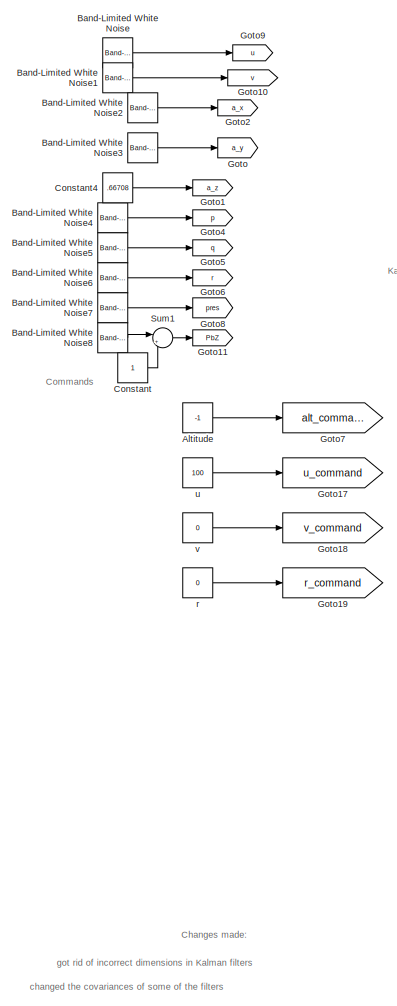
[diagram: root canvas - part 1/3, left side, full height]
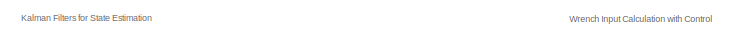
[diagram: root canvas - part 2/3, top center region]
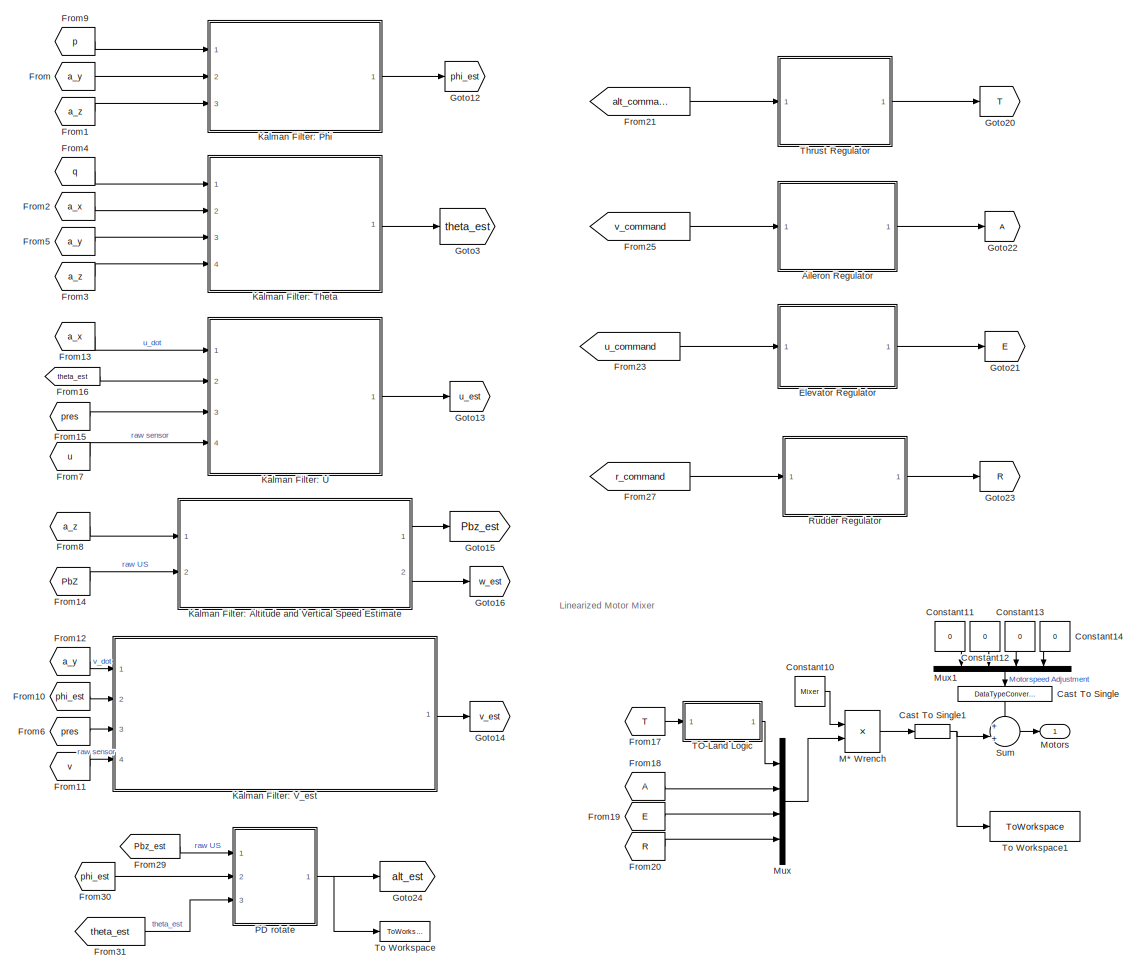
[diagram: root canvas - part 3/3, center side, full height]
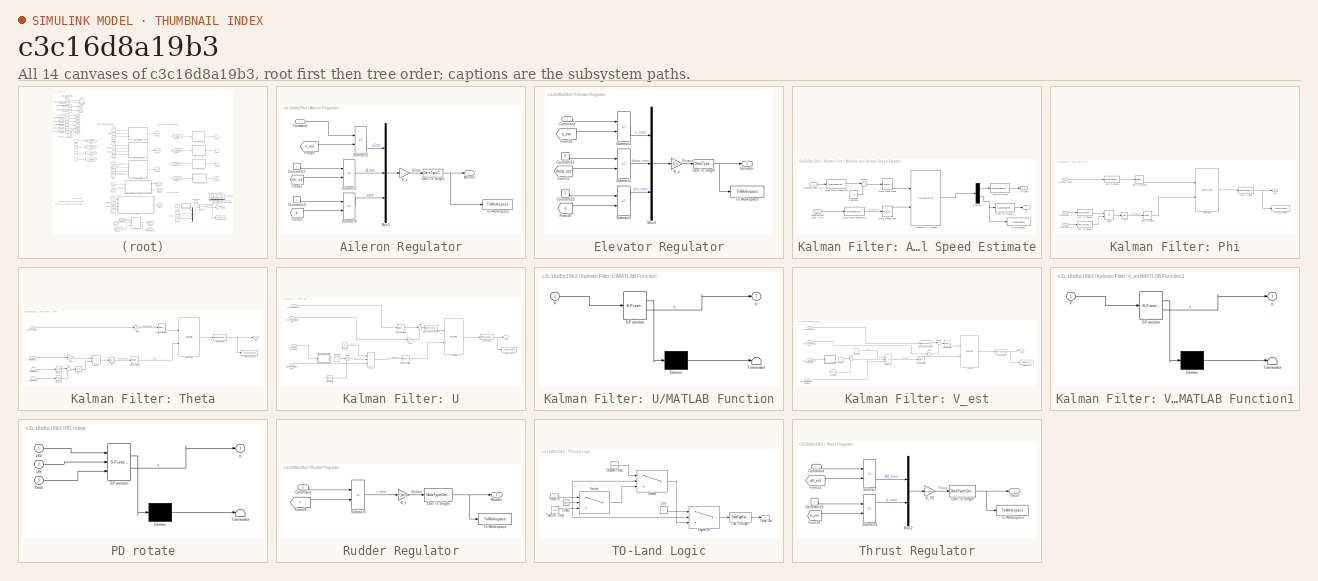
[diagram: thumbnail index - all 14 canvases of the model, root first then tree order]
MODEL slx_c3c16d8a19b3
KIND model
CONFIG AbsTol = auto
CONFIG EnableMultiTasking = off
CONFIG FixedStep = auto
CONFIG MaxStep = auto
CONFIG MinStep = auto
CONFIG RelTol = 1e-3
CONFIG SampleTimeConstraint = Unconstrained
CONFIG SolverName = VariableStepAuto
CONFIG StartTime = 0.0
CONFIG StopTime = 10.0
BLOCK [SubSystem] Aileron Regulator
  Ports = [1, 1]
  RequestExecContextInheritance = off
BLOCK [Outport] Aileron Regulator/Aileron
BLOCK [DataTypeConversion] Aileron Regulator/Cast To Single
  OutDataTypeStr = single
  RndMeth = Floor
  SaturateOnIntegerOverflow = off
BLOCK [Inport] Aileron Regulator/Command
BLOCK [Constant] Aileron Regulator/Constant10
  Value = 0
BLOCK [Constant] Aileron Regulator/Constant11
  Value = 0
BLOCK [From] Aileron Regulator/From22
  GotoTag = phi_est
  TagVisibility = global
BLOCK [From] Aileron Regulator/From26
  GotoTag = v_est
  TagVisibility = global
BLOCK [From] Aileron Regulator/From33
  GotoTag = p
  TagVisibility = global
BLOCK [Gain] Aileron Regulator/K_v
  Gain = K_v
  Multiplication = Matrix(K*u)
BLOCK [Mux] Aileron Regulator/Mux3
  DisplayOption = bar
  Inputs = 3
  Ports = [3, 1]
BLOCK [Sum] Aileron Regulator/Subtract2
  IconShape = rectangular
  Inputs = +-
  Ports = [2, 1]
BLOCK [Sum] Aileron Regulator/Subtract4
  IconShape = rectangular
  Inputs = +-
  Ports = [2, 1]
BLOCK [Sum] Aileron Regulator/Subtract5
  IconShape = rectangular
  Inputs = +-
  Ports = [2, 1]
BLOCK [ToWorkspace] Aileron Regulator/To Workspace
  FixptAsFi = on
  MaxDataPoints = inf
  Ports = [1]
  SampleTime = -1
  SaveFormat = Timeseries
  VariableName = aileron_out
BLOCK [Constant] Altitude
  Value = -1
BLOCK [Reference] Band-Limited White Noise  REF=simulink/Sources/Band-Limited
White Noise
  Ports = [0, 1]
  SourceBlock = simulink/Sources/Band-Limited\nWhite Noise
  SourceProductBaseCode = SL
  SourceType = Band-Limited White Noise.
BLOCK [Reference] Band-Limited White Noise1  REF=simulink/Sources/Band-Limited
White Noise
  Ports = [0, 1]
  SourceBlock = simulink/Sources/Band-Limited\nWhite Noise
  SourceProductBaseCode = SL
  SourceType = Band-Limited White Noise.
BLOCK [Reference] Band-Limited White Noise2  REF=simulink/Sources/Band-Limited
White Noise
  Ports = [0, 1]
  SourceBlock = simulink/Sources/Band-Limited\nWhite Noise
  SourceProductBaseCode = SL
  SourceType = Band-Limited White Noise.
BLOCK [Reference] Band-Limited White Noise3  REF=simulink/Sources/Band-Limited
White Noise
  Ports = [0, 1]
  SourceBlock = simulink/Sources/Band-Limited\nWhite Noise
  SourceProductBaseCode = SL
  SourceType = Band-Limited White Noise.
BLOCK [Reference] Band-Limited White Noise4  REF=simulink/Sources/Band-Limited
White Noise
  Ports = [0, 1]
  SourceBlock = simulink/Sources/Band-Limited\nWhite Noise
  SourceProductBaseCode = SL
  SourceType = Band-Limited White Noise.
BLOCK [Reference] Band-Limited White Noise5  REF=simulink/Sources/Band-Limited
White Noise
  Ports = [0, 1]
  SourceBlock = simulink/Sources/Band-Limited\nWhite Noise
  SourceProductBaseCode = SL
  SourceType = Band-Limited White Noise.
BLOCK [Reference] Band-Limited White Noise6  REF=simulink/Sources/Band-Limited
White Noise
  Ports = [0, 1]
  SourceBlock = simulink/Sources/Band-Limited\nWhite Noise
  SourceProductBaseCode = SL
  SourceType = Band-Limited White Noise.
BLOCK [Reference] Band-Limited White Noise7  REF=simulink/Sources/Band-Limited
White Noise
  Ports = [0, 1]
  SourceBlock = simulink/Sources/Band-Limited\nWhite Noise
  SourceProductBaseCode = SL
  SourceType = Band-Limited White Noise.
BLOCK [Reference] Band-Limited White Noise8  REF=simulink/Sources/Band-Limited
White Noise
  Ports = [0, 1]
  SourceBlock = simulink/Sources/Band-Limited\nWhite Noise
  SourceProductBaseCode = SL
  SourceType = Band-Limited White Noise.
BLOCK [DataTypeConversion] Cast To Single
  NameLocation = left
  OutDataTypeStr = single
  RndMeth = Floor
  SaturateOnIntegerOverflow = off
BLOCK [DataTypeConversion] Cast To Single1
  OutDataTypeStr = single
  RndMeth = Floor
  SaturateOnIntegerOverflow = off
BLOCK [Constant] Constant
BLOCK [Constant] Constant10
  Value = Mixer
BLOCK [Constant] Constant11
  NameLocation = left
  Value = 0
BLOCK [Constant] Constant12
  NameLocation = left
  Value = 0
BLOCK [Constant] Constant13
  NameLocation = left
  Value = 0
BLOCK [Constant] Constant14
  NameLocation = left
  Value = 0
BLOCK [Constant] Constant4
  Value = .66708
BLOCK [SubSystem] Elevator Regulator
  Ports = [1, 1]
  RequestExecContextInheritance = off
BLOCK [DataTypeConversion] Elevator Regulator/Cast To Single
  OutDataTypeStr = single
  RndMeth = Floor
  SaturateOnIntegerOverflow = off
BLOCK [Inport] Elevator Regulator/Command
BLOCK [Constant] Elevator Regulator/Constant10
  Value = 0
BLOCK [Constant] Elevator Regulator/Constant11
  Value = 0
BLOCK [Outport] Elevator Regulator/Elevator
BLOCK [From] Elevator Regulator/From22
  GotoTag = theta_est
  TagVisibility = global
BLOCK [From] Elevator Regulator/From24
  GotoTag = u_est
  TagVisibility = global
BLOCK [From] Elevator Regulator/From26
  GotoTag = q
  TagVisibility = global
BLOCK [Gain] Elevator Regulator/K_u
  Gain = K_u
  Multiplication = Matrix(K*u)
BLOCK [Mux] Elevator Regulator/Mux2
  DisplayOption = bar
  Inputs = 3
  Ports = [3, 1]
BLOCK [Sum] Elevator Regulator/Subtract1
  IconShape = rectangular
  Inputs = +-
  Ports = [2, 1]
BLOCK [Sum] Elevator Regulator/Subtract2
  IconShape = rectangular
  Inputs = +-
  Ports = [2, 1]
BLOCK [Sum] Elevator Regulator/Subtract5
  IconShape = rectangular
  Inputs = +-
  Ports = [2, 1]
BLOCK [ToWorkspace] Elevator Regulator/To Workspace
  FixptAsFi = on
  MaxDataPoints = inf
  Ports = [1]
  SampleTime = -1
  SaveFormat = Timeseries
  VariableName = elevator_out
BLOCK [From] From
  GotoTag = a_y
BLOCK [From] From1
  GotoTag = a_z
BLOCK [From] From10
  GotoTag = phi_est
  TagVisibility = global
BLOCK [From] From11
  GotoTag = v
BLOCK [From] From12
  GotoTag = a_y
BLOCK [From] From13
  GotoTag = a_x
BLOCK [From] From14
  GotoTag = PbZ
BLOCK [From] From15
  GotoTag = pres
BLOCK [From] From16
  GotoTag = theta_est
  TagVisibility = global
BLOCK [From] From17
  GotoTag = T
BLOCK [From] From18
BLOCK [From] From19
  GotoTag = E
BLOCK [From] From2
  GotoTag = a_x
BLOCK [From] From20
  GotoTag = R
BLOCK [From] From21
  GotoTag = alt_command
BLOCK [From] From23
  GotoTag = u_command
BLOCK [From] From25
  GotoTag = v_command
BLOCK [From] From27
  GotoTag = r_command
BLOCK [From] From29
  GotoTag = Pbz_est
  TagVisibility = global
BLOCK [From] From3
  GotoTag = a_z
BLOCK [From] From30
  GotoTag = phi_est
  TagVisibility = global
BLOCK [From] From31
  GotoTag = theta_est
  TagVisibility = global
BLOCK [From] From4
  GotoTag = q
  TagVisibility = global
BLOCK [From] From5
  GotoTag = a_y
BLOCK [From] From6
  GotoTag = pres
BLOCK [From] From7
  GotoTag = u
BLOCK [From] From8
  GotoTag = a_z
BLOCK [From] From9
  GotoTag = p
  TagVisibility = global
BLOCK [Goto] Goto
  GotoTag = a_y
BLOCK [Goto] Goto1
  GotoTag = a_z
BLOCK [Goto] Goto10
  GotoTag = v
BLOCK [Goto] Goto11
  GotoTag = PbZ
BLOCK [Goto] Goto12
  GotoTag = phi_est
  TagVisibility = global
BLOCK [Goto] Goto13
  GotoTag = u_est
  TagVisibility = global
BLOCK [Goto] Goto14
  GotoTag = v_est
  TagVisibility = global
BLOCK [Goto] Goto15
  GotoTag = Pbz_est
  TagVisibility = global
BLOCK [Goto] Goto16
  GotoTag = w_est
  TagVisibility = global
BLOCK [Goto] Goto17
  GotoTag = u_command
BLOCK [Goto] Goto18
  GotoTag = v_command
BLOCK [Goto] Goto19
  GotoTag = r_command
BLOCK [Goto] Goto2
  GotoTag = a_x
BLOCK [Goto] Goto20
  GotoTag = T
BLOCK [Goto] Goto21
  GotoTag = E
BLOCK [Goto] Goto22
BLOCK [Goto] Goto23
  GotoTag = R
BLOCK [Goto] Goto24
  GotoTag = alt_est
  TagVisibility = global
BLOCK [Goto] Goto3
  GotoTag = theta_est
  TagVisibility = global
BLOCK [Goto] Goto4
  GotoTag = p
  TagVisibility = global
BLOCK [Goto] Goto5
  GotoTag = q
  TagVisibility = global
BLOCK [Goto] Goto6
  GotoTag = r
  TagVisibility = global
BLOCK [Goto] Goto7
  GotoTag = alt_command
BLOCK [Goto] Goto8
  GotoTag = pres
BLOCK [Goto] Goto9
  GotoTag = u
BLOCK [SubSystem] Kalman Filter: Altitude and Vertical Speed Estimate
  Ports = [2, 2]
  RequestExecContextInheritance = off
BLOCK [Outport] Kalman Filter: Altitude and Vertical Speed Estimate/Altitude
BLOCK [DataTypeConversion] Kalman Filter: Altitude and Vertical Speed Estimate/Cast To Single
  OutDataTypeStr = single
  RndMeth = Floor
  SaturateOnIntegerOverflow = off
BLOCK [DataTypeConversion] Kalman Filter: Altitude and Vertical Speed Estimate/Cast To Single1
  OutDataTypeStr = single
  RndMeth = Floor
  SaturateOnIntegerOverflow = off
BLOCK [Constant] Kalman Filter: Altitude and Vertical Speed Estimate/Constant6
  Value = -9
BLOCK [DataTypeConversion] Kalman Filter: Altitude and Vertical Speed Estimate/Data Type Conversion
  OutDataTypeStr = double
  RndMeth = Floor
  SaturateOnIntegerOverflow = off
BLOCK [DataTypeConversion] Kalman Filter: Altitude and Vertical Speed Estimate/Data Type Conversion1
  OutDataTypeStr = double
  RndMeth = Floor
  SaturateOnIntegerOverflow = off
BLOCK [Demux] Kalman Filter: Altitude and Vertical Speed Estimate/Demux1
  Outputs = 2
  Ports = [1, 2]
BLOCK [Inport] Kalman Filter: Altitude and Vertical Speed Estimate/Measurement Input: PbZ
  Port = 2
BLOCK [Inport] Kalman Filter: Altitude and Vertical Speed Estimate/Process Input: a_z 
BLOCK [RateTransition] Kalman Filter: Altitude and Vertical Speed Estimate/Rate Transition8
  OutPortSampleTime = 1/200
BLOCK [RateTransition] Kalman Filter: Altitude and Vertical Speed Estimate/Rate Transition9
  OutPortSampleTime = 1/200
BLOCK [Sum] Kalman Filter: Altitude and Vertical Speed Estimate/Sum5
  Inputs = |+-
  Ports = [2, 1]
BLOCK [ToWorkspace] Kalman Filter: Altitude and Vertical Speed Estimate/To Workspace1
  FixptAsFi = on
  MaxDataPoints = inf
  Ports = [1]
  SampleTime = -1
  SaveFormat = Timeseries
  VariableName = w_est
BLOCK [Outport] Kalman Filter: Altitude and Vertical Speed Estimate/W
  Port = 2
BLOCK [Reference] Kalman Filter: Altitude and Vertical Speed Estimate/z_velocity & z_height  REF=ctrlSharedLib/Kalman Filter
  Ports = [2, 1]
  SourceBlock = ctrlSharedLib/Kalman Filter
  SourceProductBaseCode = CT,ID
  SourceType = ctrlKalmanFilter
BLOCK [SubSystem] Kalman Filter: Phi
  Ports = [3, 1]
  RequestExecContextInheritance = off
BLOCK [Trigonometry] Kalman Filter: Phi/Atan
  Operator = atan
  Ports = [1, 1]
BLOCK [DataTypeConversion] Kalman Filter: Phi/Cast To Double
  OutDataTypeStr = double
  RndMeth = Floor
  SaturateOnIntegerOverflow = off
BLOCK [DataTypeConversion] Kalman Filter: Phi/Cast To Double1
  OutDataTypeStr = double
  RndMeth = Floor
  SaturateOnIntegerOverflow = off
BLOCK [DataTypeConversion] Kalman Filter: Phi/Cast To Double2
  OutDataTypeStr = double
  RndMeth = Floor
  SaturateOnIntegerOverflow = off
BLOCK [DataTypeConversion] Kalman Filter: Phi/Cast To Single
  OutDataTypeStr = single
  RndMeth = Floor
  SaturateOnIntegerOverflow = off
BLOCK [Product] Kalman Filter: Phi/Divide
  Inputs = */
  Ports = [2, 1]
BLOCK [Inport] Kalman Filter: Phi/Model input 1
  Port = 2
BLOCK [Inport] Kalman Filter: Phi/Model input 2
  Port = 3
BLOCK [Inport] Kalman Filter: Phi/Process Input
BLOCK [RateTransition] Kalman Filter: Phi/Rate Transition
  OutPortSampleTime = 1/200
BLOCK [RateTransition] Kalman Filter: Phi/Rate Transition1
  OutPortSampleTime = 1/200
BLOCK [Reference] Kalman Filter: Phi/Roll Angle  REF=ctrlSharedLib/Kalman Filter
  Ports = [2, 1]
  SourceBlock = ctrlSharedLib/Kalman Filter
  SourceProductBaseCode = CT,ID
  SourceType = ctrlKalmanFilter
BLOCK [ToWorkspace] Kalman Filter: Phi/To Workspace
  FixptAsFi = on
  MaxDataPoints = inf
  Ports = [1]
  SampleTime = -1
  SaveFormat = Timeseries
  VariableName = phi_est
BLOCK [Outport] Kalman Filter: Phi/xhat
BLOCK [SubSystem] Kalman Filter: Theta
  Ports = [4, 1]
  RequestExecContextInheritance = off
BLOCK [Trigonometry] Kalman Filter: Theta/Atan1
  Operator = atan
  Ports = [1, 1]
BLOCK [DataTypeConversion] Kalman Filter: Theta/Cast To Single
  OutDataTypeStr = single
  RndMeth = Floor
  SaturateOnIntegerOverflow = off
BLOCK [Product] Kalman Filter: Theta/Divide1
  Inputs = */
  Ports = [2, 1]
BLOCK [Gain] Kalman Filter: Theta/Gain
  Gain = -1
BLOCK [Gain] Kalman Filter: Theta/Gain1
  Gain = -1
BLOCK [Inport] Kalman Filter: Theta/Model Input 1
  Port = 2
BLOCK [Inport] Kalman Filter: Theta/Model Input 2
  Port = 3
BLOCK [Inport] Kalman Filter: Theta/Model Input 3
  Port = 4
BLOCK [Reference] Kalman Filter: Theta/Pitch Angle  REF=ctrlSharedLib/Kalman Filter
  Ports = [2, 1]
  SourceBlock = ctrlSharedLib/Kalman Filter
  SourceProductBaseCode = CT,ID
  SourceType = ctrlKalmanFilter
BLOCK [Inport] Kalman Filter: Theta/Process Input
BLOCK [RateTransition] Kalman Filter: Theta/Rate Transition2
  OutPortSampleTime = 1/200
BLOCK [RateTransition] Kalman Filter: Theta/Rate Transition3
  OutPortSampleTime = 1/200
BLOCK [Sqrt] Kalman Filter: Theta/Sqrt
BLOCK [Math] Kalman Filter: Theta/Square
  Operator = square
  Ports = [1, 1]
BLOCK [Math] Kalman Filter: Theta/Square1
  Operator = square
  Ports = [1, 1]
BLOCK [Sum] Kalman Filter: Theta/Sum
  Inputs = |++
  Ports = [2, 1]
BLOCK [ToWorkspace] Kalman Filter: Theta/To Workspace
  FixptAsFi = on
  MaxDataPoints = inf
  Ports = [1]
  SampleTime = -1
  SaveFormat = Timeseries
  VariableName = theta_est
BLOCK [Outport] Kalman Filter: Theta/xhat
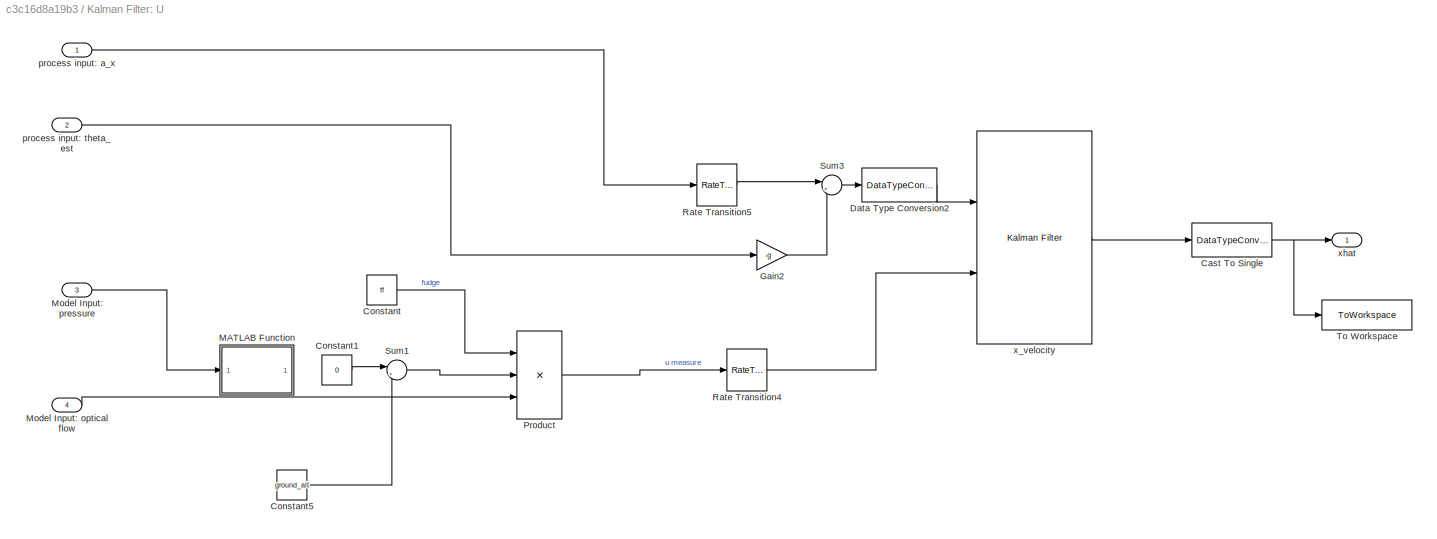
BLOCK [SubSystem] Kalman Filter: U
  Ports = [4, 1]
  RequestExecContextInheritance = off
BLOCK [DataTypeConversion] Kalman Filter: U/Cast To Single
  OutDataTypeStr = single
  RndMeth = Floor
  SaturateOnIntegerOverflow = off
BLOCK [Constant] Kalman Filter: U/Constant
  Value = ff
BLOCK [Constant] Kalman Filter: U/Constant1
  Value = 0
BLOCK [Constant] Kalman Filter: U/Constant5
  Value = ground_alt
BLOCK [DataTypeConversion] Kalman Filter: U/Data Type Conversion2
  OutDataTypeStr = double
  RndMeth = Floor
  SaturateOnIntegerOverflow = off
BLOCK [Gain] Kalman Filter: U/Gain2
  Gain = -g
BLOCK [SubSystem] Kalman Filter: U/MATLAB Function
  Commented = on
  ErrorFcn = Stateflow.Translate.translate
  PermitHierarchicalResolution = ExplicitOnly
  Ports = [1, 1]
  RequestExecContextInheritance = off
  SFBlockType = MATLAB Function
  TreatAsAtomicUnit = on
BLOCK [Demux] Kalman Filter: U/MATLAB Function/ Demux 
  Outputs = 1
  Ports = [1, 1]
BLOCK [S-Function] Kalman Filter: U/MATLAB Function/ SFunction 
  EnableBusSupport = on
  FunctionName = sf_sfun
  PortCounts = [1 2]
  Ports = [1, 2]
  SFcnIsStateOwnerBlock = off
  SFunctionDeploymentMode = off
  Tag = Stateflow S-Function 2
BLOCK [Terminator] Kalman Filter: U/MATLAB Function/ Terminator 
BLOCK [Inport] Kalman Filter: U/MATLAB Function/P
BLOCK [Outport] Kalman Filter: U/MATLAB Function/y
BLOCK [Inport] Kalman Filter: U/Model Input: optical flow
  Port = 4
BLOCK [Inport] Kalman Filter: U/Model Input: pressure
  Port = 3
BLOCK [Product] Kalman Filter: U/Product
  Inputs = 3
  Ports = [3, 1]
BLOCK [RateTransition] Kalman Filter: U/Rate Transition4
  OutPortSampleTime = 1/200
BLOCK [RateTransition] Kalman Filter: U/Rate Transition5
  OutPortSampleTime = 1/200
BLOCK [Sum] Kalman Filter: U/Sum1
  Inputs = |+-
  Ports = [2, 1]
BLOCK [Sum] Kalman Filter: U/Sum3
  Inputs = |++
  Ports = [2, 1]
BLOCK [ToWorkspace] Kalman Filter: U/To Workspace
  FixptAsFi = on
  MaxDataPoints = inf
  Ports = [1]
  SampleTime = -1
  SaveFormat = Timeseries
  VariableName = u_est
BLOCK [Inport] Kalman Filter: U/process input: a_x
BLOCK [Inport] Kalman Filter: U/process input: theta_est
  Port = 2
BLOCK [Reference] Kalman Filter: U/x_velocity  REF=ctrlSharedLib/Kalman Filter
  Ports = [2, 1]
  SourceBlock = ctrlSharedLib/Kalman Filter
  SourceProductBaseCode = CT,ID
  SourceType = ctrlKalmanFilter
BLOCK [Outport] Kalman Filter: U/xhat
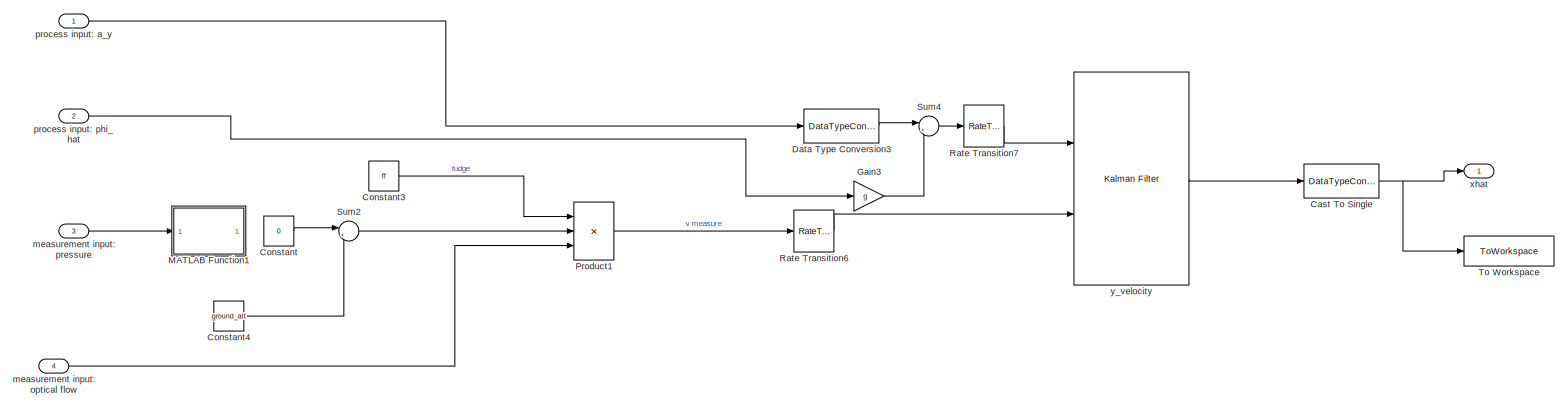
[diagram: Kalman Filter: V_est - part 1/1, most of the canvas]
BLOCK [SubSystem] Kalman Filter: V_est
  Ports = [4, 1]
  RequestExecContextInheritance = off
BLOCK [DataTypeConversion] Kalman Filter: V_est/Cast To Single
  OutDataTypeStr = single
  RndMeth = Floor
  SaturateOnIntegerOverflow = off
BLOCK [Constant] Kalman Filter: V_est/Constant
  Value = 0
BLOCK [Constant] Kalman Filter: V_est/Constant3
  Value = ff
BLOCK [Constant] Kalman Filter: V_est/Constant4
  Value = ground_alt
BLOCK [DataTypeConversion] Kalman Filter: V_est/Data Type Conversion3
  OutDataTypeStr = double
  RndMeth = Floor
  SaturateOnIntegerOverflow = off
BLOCK [Gain] Kalman Filter: V_est/Gain3
  Gain = g
BLOCK [SubSystem] Kalman Filter: V_est/MATLAB Function1
  Commented = on
  ErrorFcn = Stateflow.Translate.translate
  PermitHierarchicalResolution = ExplicitOnly
  Ports = [1, 1]
  RequestExecContextInheritance = off
  SFBlockType = MATLAB Function
  TreatAsAtomicUnit = on
BLOCK [Demux] Kalman Filter: V_est/MATLAB Function1/ Demux 
  Outputs = 1
  Ports = [1, 1]
BLOCK [S-Function] Kalman Filter: V_est/MATLAB Function1/ SFunction 
  EnableBusSupport = on
  FunctionName = sf_sfun
  PortCounts = [1 2]
  Ports = [1, 2]
  SFcnIsStateOwnerBlock = off
  SFunctionDeploymentMode = off
  Tag = Stateflow S-Function 1
BLOCK [Terminator] Kalman Filter: V_est/MATLAB Function1/ Terminator 
BLOCK [Inport] Kalman Filter: V_est/MATLAB Function1/P
BLOCK [Outport] Kalman Filter: V_est/MATLAB Function1/y
BLOCK [Product] Kalman Filter: V_est/Product1
  Inputs = 3
  Ports = [3, 1]
BLOCK [RateTransition] Kalman Filter: V_est/Rate Transition6
  OutPortSampleTime = 1/200
BLOCK [RateTransition] Kalman Filter: V_est/Rate Transition7
  OutPortSampleTime = 1/200
BLOCK [Sum] Kalman Filter: V_est/Sum2
  Inputs = |+-
  Ports = [2, 1]
BLOCK [Sum] Kalman Filter: V_est/Sum4
  Inputs = |++
  Ports = [2, 1]
BLOCK [ToWorkspace] Kalman Filter: V_est/To Workspace
  FixptAsFi = on
  MaxDataPoints = inf
  Ports = [1]
  SampleTime = -1
  SaveFormat = Timeseries
  VariableName = v_est
BLOCK [Inport] Kalman Filter: V_est/measurement input: optical flow
  Port = 4
BLOCK [Inport] Kalman Filter: V_est/measurement input: pressure
  Port = 3
BLOCK [Inport] Kalman Filter: V_est/process input: a_y   
BLOCK [Inport] Kalman Filter: V_est/process input: phi_hat 
  Port = 2
BLOCK [Outport] Kalman Filter: V_est/xhat
BLOCK [Reference] Kalman Filter: V_est/y_velocity  REF=ctrlSharedLib/Kalman Filter
  Ports = [2, 1]
  SourceBlock = ctrlSharedLib/Kalman Filter
  SourceProductBaseCode = CT,ID
  SourceType = ctrlKalmanFilter
BLOCK [Product] M* Wrench
  Multiplication = Matrix(*)
  Ports = [2, 1]
BLOCK [Outport] Motors
  VectorParamsAs1DForOutWhenUnconnected = off
BLOCK [Mux] Mux
  DisplayOption = bar
  Ports = [4, 1]
BLOCK [Mux] Mux1
  DisplayOption = bar
  NameLocation = left
  Ports = [4, 1]
BLOCK [SubSystem] PD rotate
  ErrorFcn = Stateflow.Translate.translate
  PermitHierarchicalResolution = ExplicitOnly
  Ports = [3, 1]
  RequestExecContextInheritance = off
  SFBlockType = MATLAB Function
  TreatAsAtomicUnit = on
BLOCK [Demux] PD rotate/ Demux 
  Outputs = 1
  Ports = [1, 1]
BLOCK [S-Function] PD rotate/ SFunction 
  EnableBusSupport = on
  FunctionName = sf_sfun
  PortCounts = [3 2]
  Ports = [3, 2]
  SFcnIsStateOwnerBlock = off
  SFunctionDeploymentMode = off
  Tag = Stateflow S-Function 3
BLOCK [Terminator] PD rotate/ Terminator 
BLOCK [Inport] PD rotate/pbz
BLOCK [Inport] PD rotate/phi
  Port = 2
BLOCK [Inport] PD rotate/theta
  Port = 3
BLOCK [Outport] PD rotate/y
BLOCK [SubSystem] Rudder Regulator
  Ports = [1, 1]
  RequestExecContextInheritance = off
BLOCK [DataTypeConversion] Rudder Regulator/Cast To Single
  OutDataTypeStr = single
  RndMeth = Floor
  SaturateOnIntegerOverflow = off
BLOCK [Inport] Rudder Regulator/Command
BLOCK [From] Rudder Regulator/From28
  GotoTag = r
  TagVisibility = global
BLOCK [Gain] Rudder Regulator/K_r
  Gain = K_psi(1)
BLOCK [Outport] Rudder Regulator/Rudder
BLOCK [Sum] Rudder Regulator/Subtract3
  IconShape = rectangular
  Inputs = +-
  Ports = [2, 1]
BLOCK [ToWorkspace] Rudder Regulator/To Workspace
  FixptAsFi = on
  MaxDataPoints = inf
  Ports = [1]
  SampleTime = -1
  SaveFormat = Timeseries
  VariableName = rudder_out
BLOCK [Sum] Sum
  Inputs = +|+||
  Ports = [2, 1]
BLOCK [Sum] Sum1
  Inputs = |++
  Ports = [2, 1]
BLOCK [SubSystem] TO-Land Logic
  Ports = [1, 1]
  RequestExecContextInheritance = off
BLOCK [DataTypeConversion] TO-Land Logic/Cast To Single
  OutDataTypeStr = single
  RndMeth = Floor
  SaturateOnIntegerOverflow = off
BLOCK [Clock] TO-Land Logic/Clock1
BLOCK [Switch] TO-Land Logic/Descend
  InputSameDT = off
  SaturateOnIntegerOverflow = off
  Threshold = 10
BLOCK [Constant] TO-Land Logic/Descend Thrust
  Value = 0.5*m*g
BLOCK [Switch] TO-Land Logic/Engine Off!
  InputSameDT = off
  SaturateOnIntegerOverflow = off
  Threshold = 13
BLOCK [Switch] TO-Land Logic/Switch
  InputSameDT = off
  SaturateOnIntegerOverflow = off
  Threshold = 2
BLOCK [Constant] TO-Land Logic/Take Off Thrust
  Value = 1.2*m*g
BLOCK [Inport] TO-Land Logic/Thrust In
  NameLocation = top
BLOCK [Outport] TO-Land Logic/Thrust Out
BLOCK [Constant] TO-Land Logic/Zero
  Value = 0
BLOCK [SubSystem] Thrust Regulator
  Ports = [1, 1]
  RequestExecContextInheritance = off
BLOCK [DataTypeConversion] Thrust Regulator/Cast To Single
  OutDataTypeStr = single
  RndMeth = Floor
  SaturateOnIntegerOverflow = off
BLOCK [Inport] Thrust Regulator/Command
BLOCK [Constant] Thrust Regulator/Constant10
  Value = 0
BLOCK [From] Thrust Regulator/From22
  GotoTag = alt_est
  TagVisibility = global
BLOCK [From] Thrust Regulator/From32
  GotoTag = w_est
  TagVisibility = global
BLOCK [Gain] Thrust Regulator/K_PD
  Gain = K_PD
  Multiplication = Matrix(K*u)
BLOCK [Mux] Thrust Regulator/Mux2
  DisplayOption = bar
  Inputs = 2
  Ports = [2, 1]
BLOCK [Sum] Thrust Regulator/Subtract
  IconShape = rectangular
  Inputs = +-
  Ports = [2, 1]
BLOCK [Sum] Thrust Regulator/Subtract4
  IconShape = rectangular
  Inputs = +-
  Ports = [2, 1]
BLOCK [Outport] Thrust Regulator/Thrust
BLOCK [ToWorkspace] Thrust Regulator/To Workspace
  FixptAsFi = on
  MaxDataPoints = inf
  Ports = [1]
  SampleTime = -1
  SaveFormat = Timeseries
  VariableName = thrust_out
BLOCK [ToWorkspace] To Workspace
  FixptAsFi = on
  MaxDataPoints = inf
  Ports = [1]
  SampleTime = -1
  SaveFormat = Timeseries
  VariableName = alt_est
BLOCK [ToWorkspace] To Workspace1
  FixptAsFi = on
  MaxDataPoints = inf
  Ports = [1]
  SampleTime = -1
  SaveFormat = Timeseries
  VariableName = mixer_out
BLOCK [Constant] r
  Value = 0
BLOCK [Constant] u
  Value = 100
BLOCK [Constant] v
  Value = 0
ANNOTATION (root): Changes made:
ANNOTATION (root): Commands
ANNOTATION (root): Kalman Filters for State Estimation
ANNOTATION (root): Linearized Motor Mixer
ANNOTATION (root): Wrench Input Calculation with Control
ANNOTATION (root): changed the covariances of some of the filters
ANNOTATION (root): got rid of incorrect dimensions in Kalman filters
NET Aileron Regulator/Cast To Single:1 -> Aileron Regulator/Aileron:1, Aileron Regulator/To Workspace:1
LINE Aileron Regulator/Command:1 -> Aileron Regulator/Subtract2:1
LINE Aileron Regulator/Constant10:1 -> Aileron Regulator/Subtract4:1
LINE Aileron Regulator/Constant11:1 -> Aileron Regulator/Subtract5:1
LINE Aileron Regulator/From22:1 -> Aileron Regulator/Subtract5:2
LINE Aileron Regulator/From26:1 -> Aileron Regulator/Subtract2:2
LINE Aileron Regulator/From33:1 -> Aileron Regulator/Subtract4:2
LINE Aileron Regulator/K_v:1 -> Aileron Regulator/Cast To Single:1
LINE Aileron Regulator/Mux3:1 -> Aileron Regulator/K_v:1
LINE Aileron Regulator/Subtract2:1 -> Aileron Regulator/Mux3:1
LINE Aileron Regulator/Subtract4:1 -> Aileron Regulator/Mux3:3
LINE Aileron Regulator/Subtract5:1 -> Aileron Regulator/Mux3:2
LINE Aileron Regulator:1 -> Goto22:1
LINE Altitude:1 -> Goto7:1
LINE Band-Limited White Noise1:1 -> Goto10:1
LINE Band-Limited White Noise2:1 -> Goto2:1
LINE Band-Limited White Noise3:1 -> Goto:1
LINE Band-Limited White Noise4:1 -> Goto4:1
LINE Band-Limited White Noise5:1 -> Goto5:1
LINE Band-Limited White Noise6:1 -> Goto6:1
LINE Band-Limited White Noise7:1 -> Goto8:1
LINE Band-Limited White Noise8:1 -> Sum1:1
LINE Band-Limited White Noise:1 -> Goto9:1
NET Cast To Single1:1 -> Sum:2, To Workspace1:1
LINE Cast To Single:1 -> Sum:1
LINE Constant10:1 -> M* Wrench:1
LINE Constant11:1 -> Mux1:1
LINE Constant12:1 -> Mux1:2
LINE Constant13:1 -> Mux1:3
LINE Constant14:1 -> Mux1:4
LINE Constant4:1 -> Goto1:1
LINE Constant:1 -> Sum1:2
NET Elevator Regulator/Cast To Single:1 -> Elevator Regulator/Elevator:1, Elevator Regulator/To Workspace:1
LINE Elevator Regulator/Command:1 -> Elevator Regulator/Subtract1:1
LINE Elevator Regulator/Constant10:1 -> Elevator Regulator/Subtract2:1
LINE Elevator Regulator/Constant11:1 -> Elevator Regulator/Subtract5:1
LINE Elevator Regulator/From22:1 -> Elevator Regulator/Subtract5:2
LINE Elevator Regulator/From24:1 -> Elevator Regulator/Subtract1:2
LINE Elevator Regulator/From26:1 -> Elevator Regulator/Subtract2:2
LINE Elevator Regulator/K_u:1 -> Elevator Regulator/Cast To Single:1
LINE Elevator Regulator/Mux2:1 -> Elevator Regulator/K_u:1
LINE Elevator Regulator/Subtract1:1 -> Elevator Regulator/Mux2:1
LINE Elevator Regulator/Subtract2:1 -> Elevator Regulator/Mux2:3
LINE Elevator Regulator/Subtract5:1 -> Elevator Regulator/Mux2:2
LINE Elevator Regulator:1 -> Goto21:1
LINE From10:1 -> Kalman Filter: V_est:2
LINE From11:1 -> Kalman Filter: V_est:4
LINE From12:1 -> Kalman Filter: V_est:1
LINE From13:1 -> Kalman Filter: U:1
LINE From14:1 -> Kalman Filter: Altitude and Vertical Speed Estimate:2
LINE From15:1 -> Kalman Filter: U:3
LINE From16:1 -> Kalman Filter: U:2
LINE From17:1 -> TO-Land Logic:1
LINE From18:1 -> Mux:2
LINE From19:1 -> Mux:3
LINE From1:1 -> Kalman Filter: Phi:3
LINE From20:1 -> Mux:4
LINE From21:1 -> Thrust Regulator:1
LINE From23:1 -> Elevator Regulator:1
LINE From25:1 -> Aileron Regulator:1
LINE From27:1 -> Rudder Regulator:1
LINE From29:1 -> PD rotate:1
LINE From2:1 -> Kalman Filter: Theta:2
LINE From30:1 -> PD rotate:2
LINE From31:1 -> PD rotate:3
LINE From3:1 -> Kalman Filter: Theta:4
LINE From4:1 -> Kalman Filter: Theta:1
LINE From5:1 -> Kalman Filter: Theta:3
LINE From6:1 -> Kalman Filter: V_est:3
LINE From7:1 -> Kalman Filter: U:4
LINE From8:1 -> Kalman Filter: Altitude and Vertical Speed Estimate:1
LINE From9:1 -> Kalman Filter: Phi:1
LINE From:1 -> Kalman Filter: Phi:2
LINE Kalman Filter: Altitude and Vertical Speed Estimate/Cast To Single1:1 -> Kalman Filter: Altitude and Vertical Speed Estimate/W:1
LINE Kalman Filter: Altitude and Vertical Speed Estimate/Cast To Single:1 -> Kalman Filter: Altitude and Vertical Speed Estimate/Altitude:1
LINE Kalman Filter: Altitude and Vertical Speed Estimate/Constant6:1 -> Kalman Filter: Altitude and Vertical Speed Estimate/Sum5:2
LINE Kalman Filter: Altitude and Vertical Speed Estimate/Data Type Conversion1:1 -> Kalman Filter: Altitude and Vertical Speed Estimate/Rate Transition8:1
LINE Kalman Filter: Altitude and Vertical Speed Estimate/Data Type Conversion:1 -> Kalman Filter: Altitude and Vertical Speed Estimate/Sum5:1
LINE Kalman Filter: Altitude and Vertical Speed Estimate/Demux1:1 -> Kalman Filter: Altitude and Vertical Speed Estimate/Cast To Single:1
NET Kalman Filter: Altitude and Vertical Speed Estimate/Demux1:2 -> Kalman Filter: Altitude and Vertical Speed Estimate/Cast To Single1:1, Kalman Filter: Altitude and Vertical Speed Estimate/To Workspace1:1
LINE Kalman Filter: Altitude and Vertical Speed Estimate/Measurement Input: PbZ:1 -> Kalman Filter: Altitude and Vertical Speed Estimate/Data Type Conversion1:1
LINE Kalman Filter: Altitude and Vertical Speed Estimate/Process Input: a_z :1 -> Kalman Filter: Altitude and Vertical Speed Estimate/Data Type Conversion:1
LINE Kalman Filter: Altitude and Vertical Speed Estimate/Rate Transition8:1 -> Kalman Filter: Altitude and Vertical Speed Estimate/z_velocity & z_height:2
LINE Kalman Filter: Altitude and Vertical Speed Estimate/Rate Transition9:1 -> Kalman Filter: Altitude and Vertical Speed Estimate/z_velocity & z_height:1
LINE Kalman Filter: Altitude and Vertical Speed Estimate/Sum5:1 -> Kalman Filter: Altitude and Vertical Speed Estimate/Rate Transition9:1
LINE Kalman Filter: Altitude and Vertical Speed Estimate/z_velocity & z_height:1 -> Kalman Filter: Altitude and Vertical Speed Estimate/Demux1:1
LINE Kalman Filter: Altitude and Vertical Speed Estimate:1 -> Goto15:1
LINE Kalman Filter: Altitude and Vertical Speed Estimate:2 -> Goto16:1
LINE Kalman Filter: Phi/Atan:1 -> Kalman Filter: Phi/Rate Transition:1
LINE Kalman Filter: Phi/Cast To Double1:1 -> Kalman Filter: Phi/Divide:1
LINE Kalman Filter: Phi/Cast To Double2:1 -> Kalman Filter: Phi/Divide:2
LINE Kalman Filter: Phi/Cast To Double:1 -> Kalman Filter: Phi/Rate Transition1:1
NET Kalman Filter: Phi/Cast To Single:1 -> Kalman Filter: Phi/To Workspace:1, Kalman Filter: Phi/xhat:1
LINE Kalman Filter: Phi/Divide:1 -> Kalman Filter: Phi/Atan:1
LINE Kalman Filter: Phi/Model input 1:1 -> Kalman Filter: Phi/Cast To Double1:1
LINE Kalman Filter: Phi/Model input 2:1 -> Kalman Filter: Phi/Cast To Double2:1
LINE Kalman Filter: Phi/Process Input:1 -> Kalman Filter: Phi/Cast To Double:1
LINE Kalman Filter: Phi/Rate Transition1:1 -> Kalman Filter: Phi/Roll Angle:1
LINE Kalman Filter: Phi/Rate Transition:1 -> Kalman Filter: Phi/Roll Angle:2
LINE Kalman Filter: Phi/Roll Angle:1 -> Kalman Filter: Phi/Cast To Single:1
LINE Kalman Filter: Phi:1 -> Goto12:1
LINE Kalman Filter: Theta/Atan1:1 -> Kalman Filter: Theta/Rate Transition2:1
NET Kalman Filter: Theta/Cast To Single:1 -> Kalman Filter: Theta/To Workspace:1, Kalman Filter: Theta/xhat:1
LINE Kalman Filter: Theta/Divide1:1 -> Kalman Filter: Theta/Atan1:1
LINE Kalman Filter: Theta/Gain1:1 -> Kalman Filter: Theta/Divide1:1
LINE Kalman Filter: Theta/Gain:1 -> Kalman Filter: Theta/Rate Transition3:1
LINE Kalman Filter: Theta/Model Input 1:1 -> Kalman Filter: Theta/Gain1:1
LINE Kalman Filter: Theta/Model Input 2:1 -> Kalman Filter: Theta/Square:1
LINE Kalman Filter: Theta/Model Input 3:1 -> Kalman Filter: Theta/Square1:1
LINE Kalman Filter: Theta/Pitch Angle:1 -> Kalman Filter: Theta/Cast To Single:1
LINE Kalman Filter: Theta/Process Input:1 -> Kalman Filter: Theta/Gain:1
LINE Kalman Filter: Theta/Rate Transition2:1 -> Kalman Filter: Theta/Pitch Angle:2
LINE Kalman Filter: Theta/Rate Transition3:1 -> Kalman Filter: Theta/Pitch Angle:1
LINE Kalman Filter: Theta/Sqrt:1 -> Kalman Filter: Theta/Divide1:2
LINE Kalman Filter: Theta/Square1:1 -> Kalman Filter: Theta/Sum:2
LINE Kalman Filter: Theta/Square:1 -> Kalman Filter: Theta/Sum:1
LINE Kalman Filter: Theta/Sum:1 -> Kalman Filter: Theta/Sqrt:1
LINE Kalman Filter: Theta:1 -> Goto3:1
NET Kalman Filter: U/Cast To Single:1 -> Kalman Filter: U/To Workspace:1, Kalman Filter: U/xhat:1
LINE Kalman Filter: U/Constant1:1 -> Kalman Filter: U/Sum1:1
LINE Kalman Filter: U/Constant5:1 -> Kalman Filter: U/Sum1:2
LINE Kalman Filter: U/Constant:1 -> Kalman Filter: U/Product:1
LINE Kalman Filter: U/Data Type Conversion2:1 -> Kalman Filter: U/x_velocity:1
LINE Kalman Filter: U/Gain2:1 -> Kalman Filter: U/Sum3:2
LINE Kalman Filter: U/Model Input: optical flow:1 -> Kalman Filter: U/Product:3
LINE Kalman Filter: U/Model Input: pressure:1 -> Kalman Filter: U/MATLAB Function:1
LINE Kalman Filter: U/Product:1 -> Kalman Filter: U/Rate Transition4:1
LINE Kalman Filter: U/Rate Transition4:1 -> Kalman Filter: U/x_velocity:2
LINE Kalman Filter: U/Rate Transition5:1 -> Kalman Filter: U/Sum3:1
LINE Kalman Filter: U/Sum1:1 -> Kalman Filter: U/Product:2
LINE Kalman Filter: U/Sum3:1 -> Kalman Filter: U/Data Type Conversion2:1
LINE Kalman Filter: U/process input: a_x:1 -> Kalman Filter: U/Rate Transition5:1
LINE Kalman Filter: U/process input: theta_est:1 -> Kalman Filter: U/Gain2:1
LINE Kalman Filter: U/x_velocity:1 -> Kalman Filter: U/Cast To Single:1
LINE Kalman Filter: U:1 -> Goto13:1
NET Kalman Filter: V_est/Cast To Single:1 -> Kalman Filter: V_est/To Workspace:1, Kalman Filter: V_est/xhat:1
LINE Kalman Filter: V_est/Constant3:1 -> Kalman Filter: V_est/Product1:1
LINE Kalman Filter: V_est/Constant4:1 -> Kalman Filter: V_est/Sum2:2
LINE Kalman Filter: V_est/Constant:1 -> Kalman Filter: V_est/Sum2:1
LINE Kalman Filter: V_est/Data Type Conversion3:1 -> Kalman Filter: V_est/Sum4:1
LINE Kalman Filter: V_est/Gain3:1 -> Kalman Filter: V_est/Sum4:2
LINE Kalman Filter: V_est/Product1:1 -> Kalman Filter: V_est/Rate Transition6:1
LINE Kalman Filter: V_est/Rate Transition6:1 -> Kalman Filter: V_est/y_velocity:2
LINE Kalman Filter: V_est/Rate Transition7:1 -> Kalman Filter: V_est/y_velocity:1
LINE Kalman Filter: V_est/Sum2:1 -> Kalman Filter: V_est/Product1:2
LINE Kalman Filter: V_est/Sum4:1 -> Kalman Filter: V_est/Rate Transition7:1
LINE Kalman Filter: V_est/measurement input: optical flow:1 -> Kalman Filter: V_est/Product1:3
LINE Kalman Filter: V_est/measurement input: pressure:1 -> Kalman Filter: V_est/MATLAB Function1:1
LINE Kalman Filter: V_est/process input: a_y   :1 -> Kalman Filter: V_est/Data Type Conversion3:1
LINE Kalman Filter: V_est/process input: phi_hat :1 -> Kalman Filter: V_est/Gain3:1
LINE Kalman Filter: V_est/y_velocity:1 -> Kalman Filter: V_est/Cast To Single:1
LINE Kalman Filter: V_est:1 -> Goto14:1
LINE M* Wrench:1 -> Cast To Single1:1
LINE Mux1:1 -> Cast To Single:1
LINE Mux:1 -> M* Wrench:2
NET PD rotate:1 -> Goto24:1, To Workspace:1
NET Rudder Regulator/Cast To Single:1 -> Rudder Regulator/Rudder:1, Rudder Regulator/To Workspace:1
LINE Rudder Regulator/Command:1 -> Rudder Regulator/Subtract3:1
LINE Rudder Regulator/From28:1 -> Rudder Regulator/Subtract3:2
LINE Rudder Regulator/K_r:1 -> Rudder Regulator/Cast To Single:1
LINE Rudder Regulator/Subtract3:1 -> Rudder Regulator/K_r:1
LINE Rudder Regulator:1 -> Goto23:1
LINE Sum1:1 -> Goto11:1
LINE Sum:1 -> Motors:1
LINE TO-Land Logic/Cast To Single:1 -> TO-Land Logic/Thrust Out:1
NET TO-Land Logic/Clock1:1 -> TO-Land Logic/Descend:2, TO-Land Logic/Engine Off!:2, TO-Land Logic/Switch:2
LINE TO-Land Logic/Descend Thrust:1 -> TO-Land Logic/Descend:1
LINE TO-Land Logic/Descend:1 -> TO-Land Logic/Engine Off!:3
LINE TO-Land Logic/Engine Off!:1 -> TO-Land Logic/Cast To Single:1
LINE TO-Land Logic/Switch:1 -> TO-Land Logic/Descend:3
LINE TO-Land Logic/Take Off Thrust:1 -> TO-Land Logic/Switch:3
LINE TO-Land Logic/Thrust In:1 -> TO-Land Logic/Switch:1
LINE TO-Land Logic/Zero:1 -> TO-Land Logic/Engine Off!:1
LINE TO-Land Logic:1 -> Mux:1
NET Thrust Regulator/Cast To Single:1 -> Thrust Regulator/Thrust:1, Thrust Regulator/To Workspace:1
LINE Thrust Regulator/Command:1 -> Thrust Regulator/Subtract:1
LINE Thrust Regulator/Constant10:1 -> Thrust Regulator/Subtract4:1
LINE Thrust Regulator/From22:1 -> Thrust Regulator/Subtract:2
LINE Thrust Regulator/From32:1 -> Thrust Regulator/Subtract4:2
LINE Thrust Regulator/K_PD:1 -> Thrust Regulator/Cast To Single:1
LINE Thrust Regulator/Mux2:1 -> Thrust Regulator/K_PD:1
LINE Thrust Regulator/Subtract4:1 -> Thrust Regulator/Mux2:2
LINE Thrust Regulator/Subtract:1 -> Thrust Regulator/Mux2:1
LINE Thrust Regulator:1 -> Goto20:1
LINE r:1 -> Goto19:1
LINE u:1 -> Goto17:1
LINE v:1 -> Goto18:1
note: NET lines group one-source signal fan-out (src -> all destinations, sorted); 1:1 wires keep LINE
CHART Kalman Filter: U/MATLAB Function states=1 transitions=1
  STATE_LABEL 'eML_blk_kernel()'
  STATE_LABEL 'SCRIPT:\nfunction y = z_pres(P)\ng = 9.8; % acceleration due to gravity m/s^2\nM = 0.0289644; % molar mass of air in kg/mol\nR = 8.31432; % universal gas constant Nm/mol/k\np0 = 101325; % Pa standard pressure\n\nT =288.15;  % Assumed temperature in kelvin\nK =-g*M/R/T;\nz_hypsometric = 1/K*log(P/p0);\ny = z_hypsometric;\n'
CHART PD rotate states=1 transitions=1
  STATE_LABEL 'eML_blk_kernel()'
  STATE_LABEL "SCRIPT:\nfunction y = rotate_BE(pbz, phi, theta)\nroll_BE = [1 0 0; 0 cos(phi) sin(phi); 0 -sin(phi) cos(phi)]';\npitch_BE = [cos(theta) 0 -sin(theta); 0 1 0; sin(theta) 0 cos(theta);]';\n%yaw_BE = simplify(inv([cos(psi) sin(psi) 0; -sin(psi) cos(psi) 0; 0 0 1;]));\nrotater = roll_BE*pitch_BE*pbz;\ny = rotater(3);\n"
CHART Kalman Filter: V_est/MATLAB Function1 states=1 transitions=1
  STATE_LABEL 'eML_blk_kernel()'
  STATE_LABEL 'SCRIPT:\nfunction y = z_pres(P)\ng = 9.8; % acceleration due to gravity m/s^2\nM = 0.0289644; % molar mass of air in kg/mol\nR = 8.31432; % universal gas constant Nm/mol/k\np0 = 101325; % Pa standard pressure\n\nT =288.15;  % Assumed temperature in kelvin\nK =-g*M/R/T;\nz_hypsometric = 1/K*log(P/p0);\ny = z_hypsometric;\n'
CHART  states=0 transitions=0
CHART  states=0 transitions=0
CHART  states=0 transitions=0
